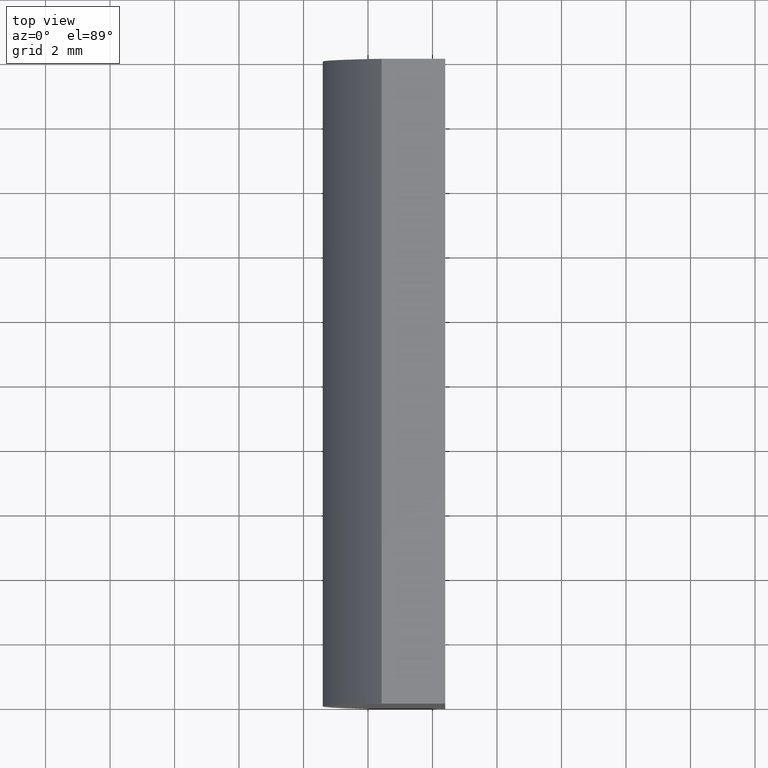
[diagram: clean part render]
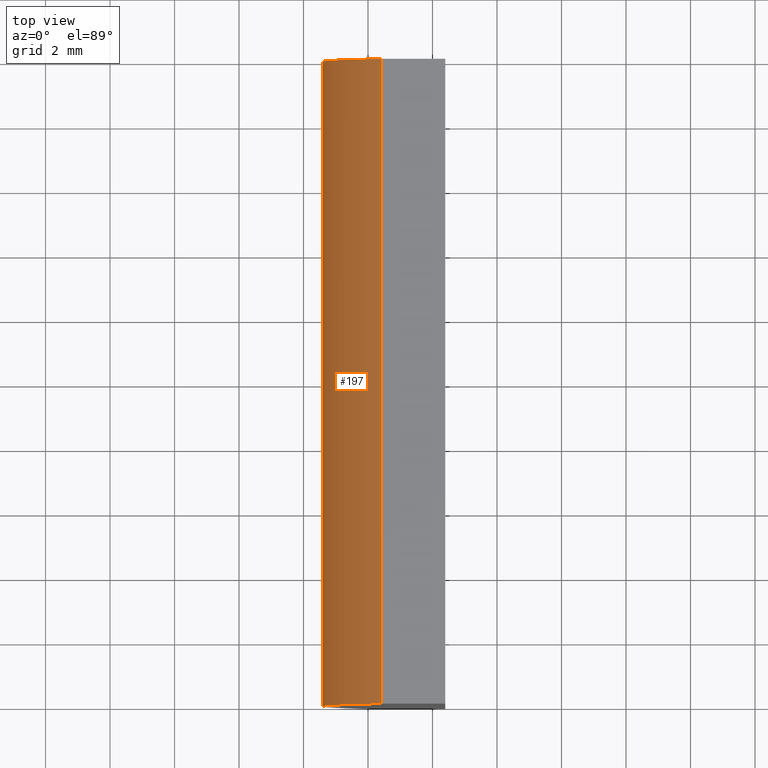
[diagram: same view with one face highlighted and labeled with its STEP entity id]
A machine part, top view. The second image highlights one B-rep face of the part: STEP entity #197.
In plain terms, the highlighted cylindrical surface (partial cylindrical patch) has radius 7.76 mm, axis along (-0, -1, -0).
Its self-contained STEP definition (entity closure, byte-faithful):
#3 = EDGE_CURVE ( 'NONE', #70, #60, #109, .T. ) ;
#16 = EDGE_CURVE ( 'NONE', #51, #130, #93, .T. ) ;
#24 = DIRECTION ( 'NONE',  ( -0.0000000000000000000, -1.000000000000000000, -0.0000000000000000000 ) ) ;
#42 = FACE_OUTER_BOUND ( 'NONE', #196, .T. ) ;
#45 = DIRECTION ( 'NONE',  ( 0.0000000000000000000, 0.0000000000000000000, 1.000000000000000000 ) ) ;
#46 = CARTESIAN_POINT ( 'NONE',  ( -1.579237509164056900, 20.00000000000000000, 5.000000000000000000 ) ) ;
#48 = ORIENTED_EDGE ( 'NONE', *, *, #16, .T. ) ;
#51 = VERTEX_POINT ( 'NONE', #152 ) ;
#52 = DIRECTION ( 'NONE',  ( 0.0000000000000000000, 1.000000000000000000, 0.0000000000000000000 ) ) ;
#60 = VERTEX_POINT ( 'NONE', #103 ) ;
#62 = ORIENTED_EDGE ( 'NONE', *, *, #3, .F. ) ;
#70 = VERTEX_POINT ( 'NONE', #179 ) ;
#80 = CARTESIAN_POINT ( 'NONE',  ( 4.355204334851265500, 20.00000000000000000, 4.286263797015675000E-017 ) ) ;
#81 = EDGE_CURVE ( 'NONE', #60, #130, #161, .T. ) ;
#85 = VECTOR ( 'NONE', #193, 1000.000000000000000 ) ;
#88 = DIRECTION ( 'NONE',  ( 0.0000000000000000000, 0.0000000000000000000, -1.000000000000000000 ) ) ;
#93 = CIRCLE ( 'NONE', #194, 7.759999999999998000 ) ;
#103 = CARTESIAN_POINT ( 'NONE',  ( -1.579237509164056900, 20.00000000000000000, 5.000000000000000000 ) ) ;
#109 = CIRCLE ( 'NONE', #127, 7.759999999999998000 ) ;
#117 = EDGE_CURVE ( 'NONE', #70, #51, #177, .T. ) ;
#126 = DIRECTION ( 'NONE',  ( 0.0000000000000000000, 1.000000000000000000, 0.0000000000000000000 ) ) ;
#127 = AXIS2_PLACEMENT_3D ( 'NONE', #188, #52, #176 ) ;
#128 = ORIENTED_EDGE ( 'NONE', *, *, #81, .F. ) ;
#130 = VERTEX_POINT ( 'NONE', #172 ) ;
#135 = ORIENTED_EDGE ( 'NONE', *, *, #117, .T. ) ;
#147 = DIRECTION ( 'NONE',  ( -0.0000000000000000000, -1.000000000000000000, -0.0000000000000000000 ) ) ;
#152 = CARTESIAN_POINT ( 'NONE',  ( -1.579237509164056700, 0.0000000000000000000, -5.000000000000000000 ) ) ;
#153 = CYLINDRICAL_SURFACE ( 'NONE', #165, 7.759999999999998000 ) ;
#155 = CARTESIAN_POINT ( 'NONE',  ( -1.579237509164056700, 20.00000000000000000, -5.000000000000000000 ) ) ;
#156 = VECTOR ( 'NONE', #147, 1000.000000000000000 ) ;
#161 = LINE ( 'NONE', #46, #156 ) ;
#165 = AXIS2_PLACEMENT_3D ( 'NONE', #80, #24, #88 ) ;
#172 = CARTESIAN_POINT ( 'NONE',  ( -1.579237509164056900, 0.0000000000000000000, 5.000000000000000000 ) ) ;
#176 = DIRECTION ( 'NONE',  ( 0.0000000000000000000, 0.0000000000000000000, 1.000000000000000000 ) ) ;
#177 = LINE ( 'NONE', #155, #85 ) ;
#179 = CARTESIAN_POINT ( 'NONE',  ( -1.579237509164056700, 20.00000000000000000, -5.000000000000000000 ) ) ;
#188 = CARTESIAN_POINT ( 'NONE',  ( 4.355204334851265500, 20.00000000000000000, 4.286263797015675000E-017 ) ) ;
#193 = DIRECTION ( 'NONE',  ( -0.0000000000000000000, -1.000000000000000000, -0.0000000000000000000 ) ) ;
#194 = AXIS2_PLACEMENT_3D ( 'NONE', #195, #126, #45 ) ;
#195 = CARTESIAN_POINT ( 'NONE',  ( 4.355204334851265500, 0.0000000000000000000, 4.286263797015675000E-017 ) ) ;
#196 = EDGE_LOOP ( 'NONE', ( #48, #128, #62, #135 ) ) ;
#197 = ADVANCED_FACE ( 'NONE', ( #42 ), #153, .T. ) ;